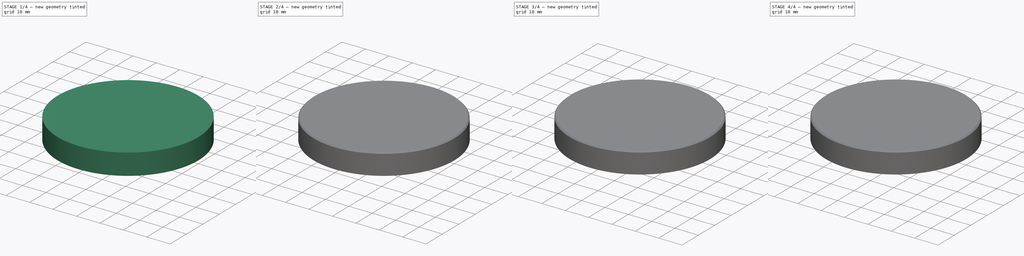
[diagram: build sequence overview — one tinted view per stage of 4, left to right]
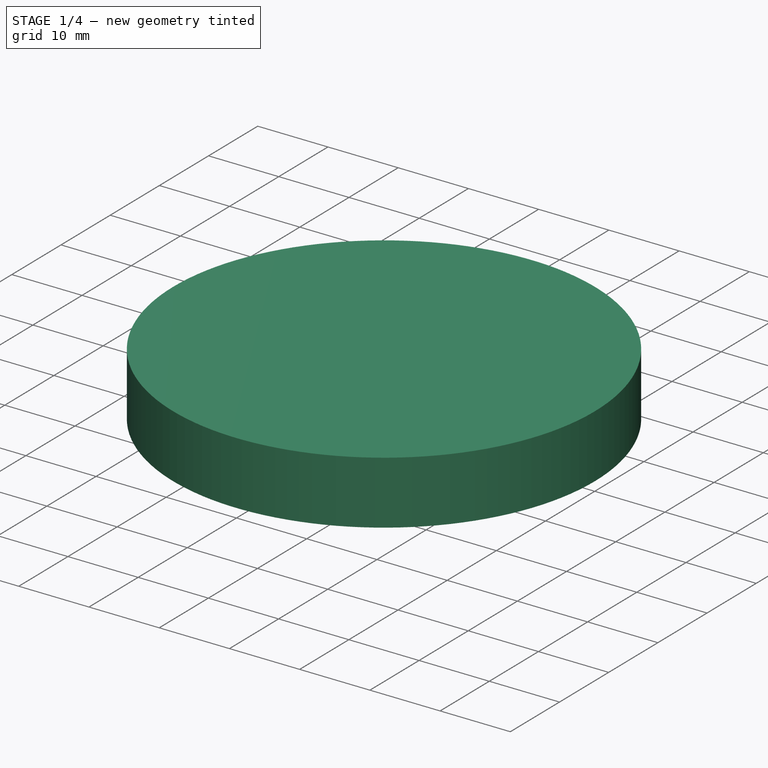
[diagram: stage 1 of 4 — iso view after this stage's code; geometry added in this stage tinted green]
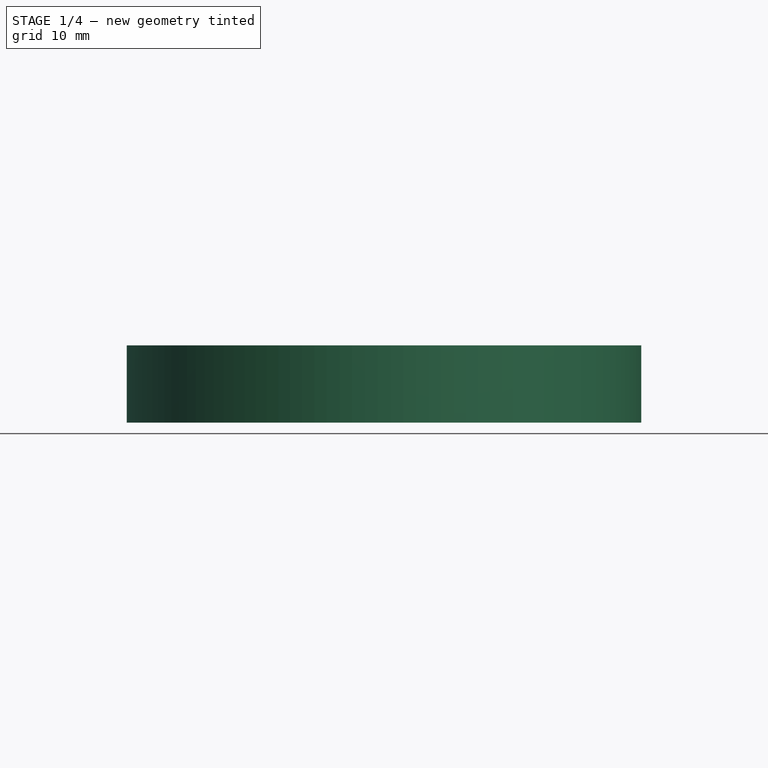
[diagram: stage 1 of 4 — front view after this stage's code; geometry added in this stage tinted green]
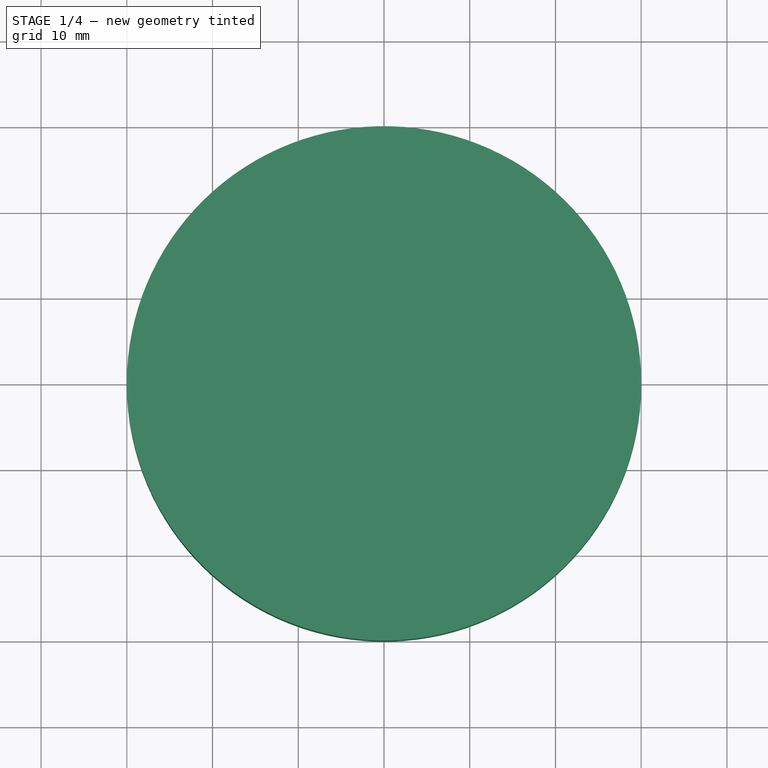
[diagram: stage 1 of 4 — top view after this stage's code; geometry added in this stage tinted green]
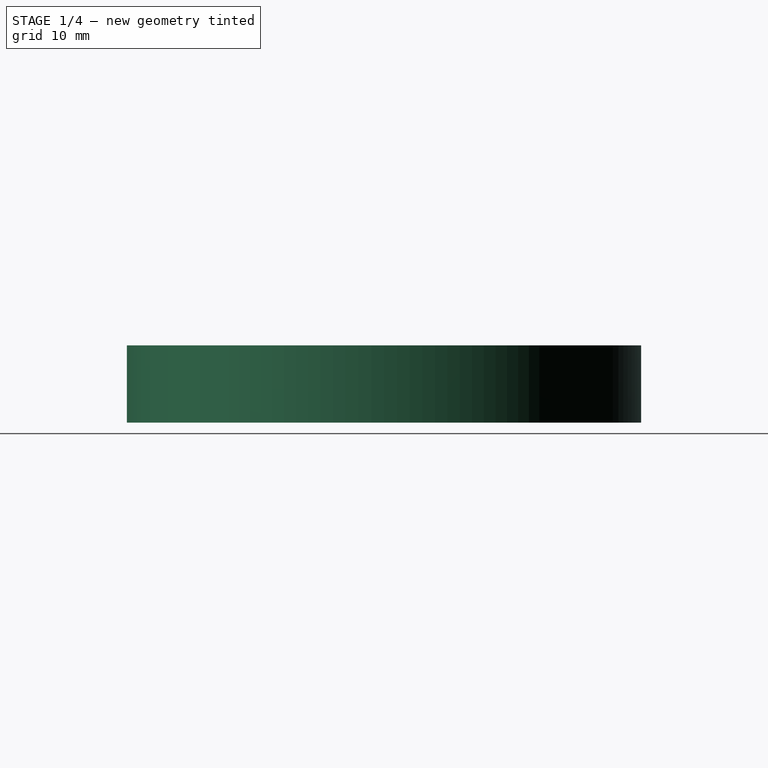
[diagram: stage 1 of 4 — right view after this stage's code; geometry added in this stage tinted green]
FCSTD DOCUMENT  (FreeCAD 0.20R29603 (Git))
Label: Weegschaal_005
License: All rights reserved
LicenseURL: http://en.wikipedia.org/wiki/All_rights_reserved
objects: Sketcher::SketchObject×9, TechDraw::DrawViewPart×6, PartDesign::Pad×4, PartDesign::Body×4, PartDesign::Pocket×4, Part::Feature×3, Image::ImagePlane×2, App::DocumentObjectGroup×2, App::FeaturePython×1, PartDesign::Thickness×1, PartDesign::Chamfer×1, TechDraw::DrawSVGTemplate×1, TechDraw::DrawPage×1, Part::Refine×1
note: 37 computed .brp shape members not serialized (recipe doc carries the construction recipe); baked Part::Feature solids carry a one-line shape summary decoded from their .brp

FEATURE [PartDesign::Body] Body001  label="Body_HX711"
  Group = -> [Sketch001,Pad001]
  Origin = -> Origin001
  Tip = -> Pad001
FEATURE [Part::Feature] Pad002  label="HX711_Big"
  shape: bbox 21 x 35 x 3 mm, 6 faces (baked)
FEATURE [Image::ImagePlane] __10_stuks_hx711_weegsensor_module_dual_channel_24_bit_precisie_a_d_module_druk_weegsensorbord  label="1-10-stuks-hx711-weegsensor-module-dual-channel-24-bit-precisie-a-d-module-druk-weegsensorbord"
  Placement = pos=(0,0,0) rot=(0,0,1;1.5708rad)
  XSize = 67.982
  YSize = 67.982
FEATURE [Image::ImagePlane] Tzt_1_5Pcs_Voor_Arduino_Dual_Channel_HX711_Wegen_Druksensor_24_Bit_Precisie_A_D_module  label="Tzt-1-5Pcs-Voor-Arduino-Dual-Channel-HX711-Wegen-Druksensor-24-Bit-Precisie-A-D-module"
  XSize = 264.55
  YSize = 264.55
FEATURE [Part::Feature] Pad003  label="HX711_Small"
  Placement = pos=(15,0,4) rot=(0,0,1;0rad)
  shape: bbox 15.6 x 24 x 3 mm, 6 faces (baked)
FEATURE [Sketcher::SketchObject] Sketch002
  FullyConstrained = true
  MapMode = 5
  Support = -> [XY_Plane002]
  expr: Constraints[1] = <<dd>>.ddTopCoverDiameter
  sketch-geometry (1):
    g0: Circle CenterX=0 CenterY=0 CenterZ=0 NormalX=0 NormalY=0 NormalZ=1 AngleXU=0 Radius=30
  constraints (2):
    c: Coincident(g0,g-1)
    c: Diameter(g0) = 60
FEATURE [PartDesign::Pad] Pad004
  Direction = (0,0,1)
  Length = 9
  Length2 = 10
  Profile = -> Sketch002
  ReferenceAxis = -> Sketch002 [N_Axis]
  Type = 0
  expr: Length = <<dd>>.ddTopCoverHeight
FEATURE [PartDesign::Thickness] Thickness
  Base = -> Pad004 [Face2]
  BaseFeature = -> Pad004
  Intersection = false
  Join = 0
  Mode = 0
  Reversed = true
  SupportTransform = false
  Value = 1
  expr: Value = <<dd>>.ddTopCoverThickness
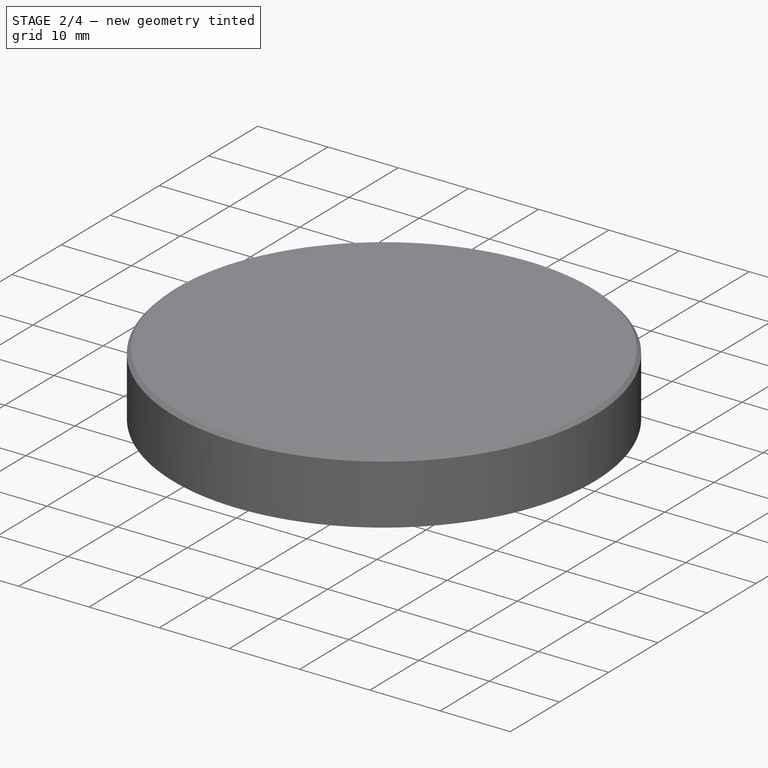
[diagram: stage 2 of 4 — iso view after this stage's code; geometry added in this stage tinted green]
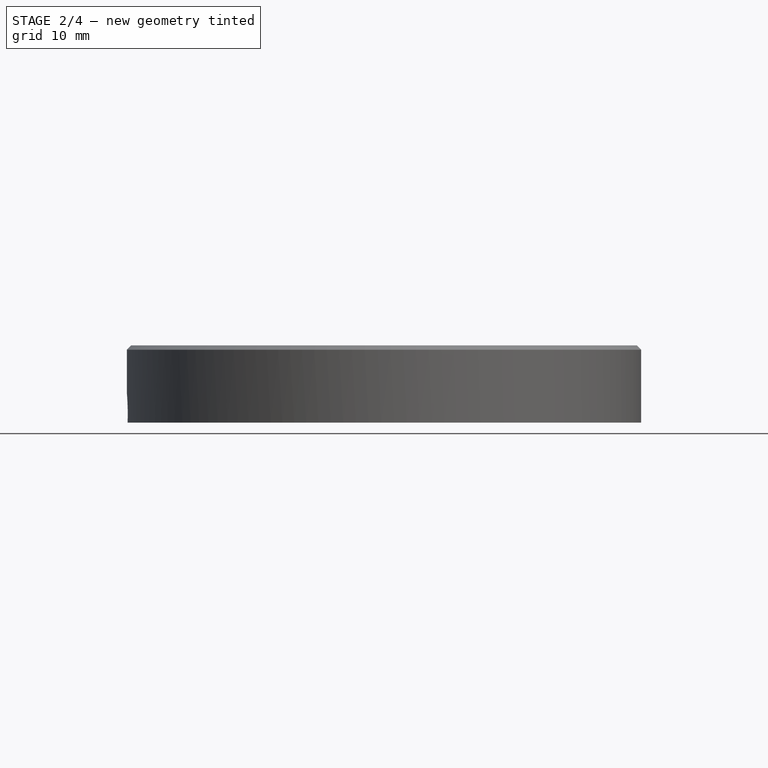
[diagram: stage 2 of 4 — front view after this stage's code; geometry added in this stage tinted green]
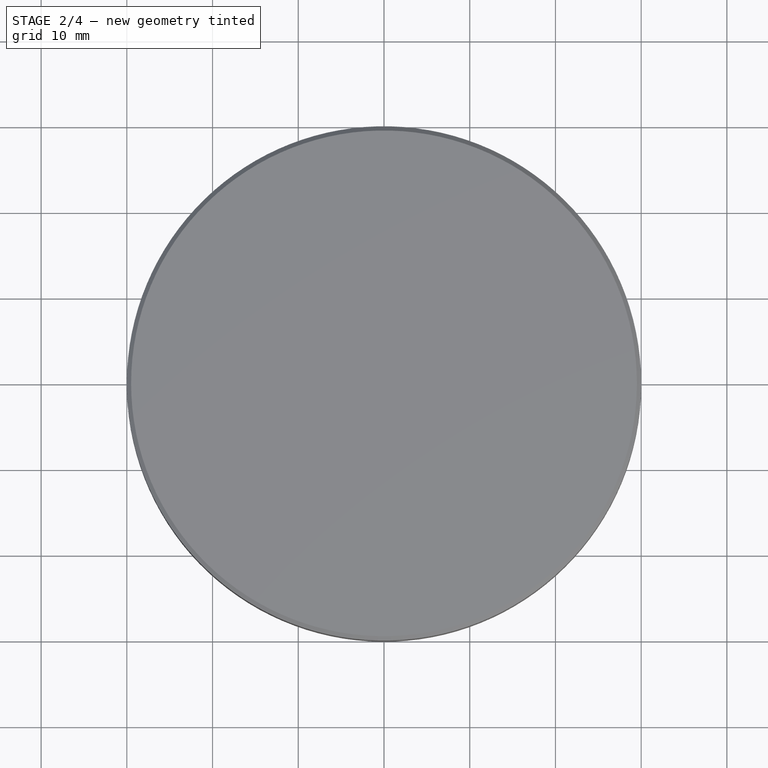
[diagram: stage 2 of 4 — top view after this stage's code; geometry added in this stage tinted green]
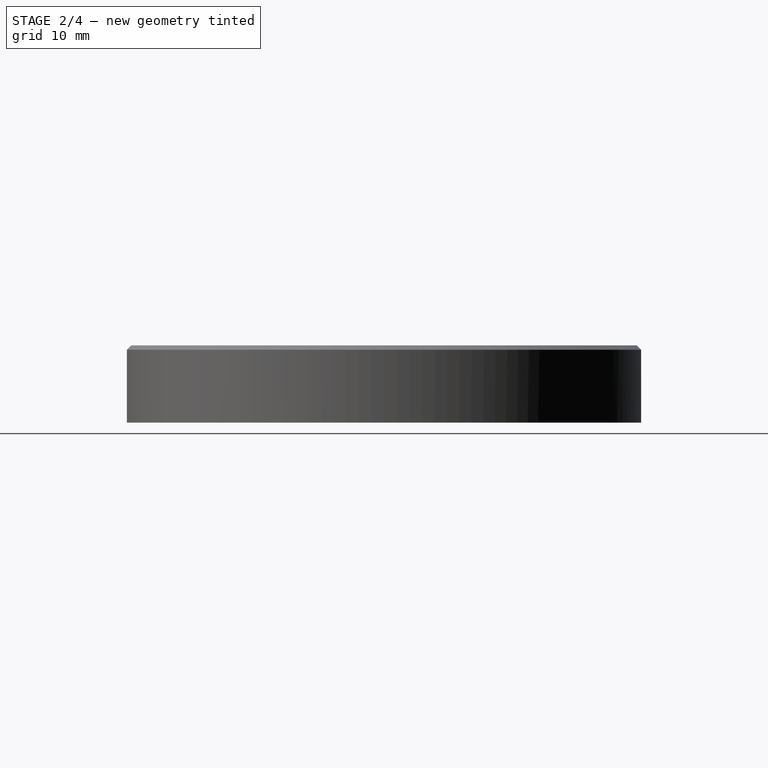
[diagram: stage 2 of 4 — right view after this stage's code; geometry added in this stage tinted green]
FEATURE [Sketcher::SketchObject] Sketch001
  FullyConstrained = true
  MapMode = 5
  Support = -> [XY_Plane001]
  sketch-geometry (4):
    g0: LineSegment StartX=-7.8 StartY=12 StartZ=0 EndX=7.8 EndY=12 EndZ=0
    g1: LineSegment StartX=7.8 StartY=12 StartZ=0 EndX=7.8 EndY=-12 EndZ=0
    g2: LineSegment StartX=7.8 StartY=-12 StartZ=0 EndX=-7.8 EndY=-12 EndZ=0
    g3: LineSegment StartX=-7.8 StartY=-12 StartZ=0 EndX=-7.8 EndY=12 EndZ=0
  constraints (10):
    c: Coincident(g0,g1)
    c: Coincident(g1,g2)
    c: Coincident(g2,g3)
    c: Coincident(g3,g0)
    c: Horizontal(g2)
    c: Vertical(g3)
    c: Symmetric(g0,g0,g-2)
    c: Symmetric(g1,g0,g-1)
    c: DistanceY(g3,g3) = 24
    c: DistanceX(g0,g0) = 15.6
FEATURE [PartDesign::Pad] Pad001
  Direction = (0,0,1)
  Length = 3
  Length2 = 10
  Profile = -> Sketch001
  ReferenceAxis = -> Sketch001 [N_Axis]
  Type = 0
FEATURE [App::DocumentObjectGroup] Group  label="SimpleObjects"
  Group = -> [Pad003,Pad002,Chamfer001,__10_stuks_hx711_weegsensor_module_dual_channel_24_bit_precisie_a_d_module_druk_weegsensorbord,Tzt_1_5Pcs_Voor_Arduino_Dual_Channel_HX711_Wegen_Druksensor_24_Bit_Precisie_A_D_module]
FEATURE [PartDesign::Chamfer] Chamfer
  Angle = 45
  Base = -> Thickness [Face2]
  BaseFeature = -> Thickness
  ChamferType = 0
  FlipDirection = false
  Size = 0.5
  Size2 = 1
  SupportTransform = false
  UseAllEdges = false
FEATURE [Sketcher::SketchObject] Sketch003  label="Sketch_SideHole"
  FullyConstrained = true
  MapMode = 5
  Placement = pos=(0,0,0) rot=(0.57735,0.57735,0.57735;2.0944rad)
  Support = -> [YZ_Plane002]
  sketch-geometry (2):
    g0: ArcOfCircle CenterX=0 CenterY=1 CenterZ=0 NormalX=0 NormalY=0 NormalZ=1 AngleXU=0 Radius=2.5 StartAngle=5.87167 EndAngle=9.83629
    g1: LineSegment StartX=-2.29129 StartY=0 StartZ=0 EndX=2.29129 EndY=-2e-16 EndZ=0
  constraints (7):
    c: PointOnObject(g0,g-2)
    c: PointOnObject(g0,g-1)
    c: Coincident(g1,g0)
    c: Coincident(g1,g0)
    c: PointOnObject(g-1,g1)
    c: Diameter(g0) = 5
    c: DistanceY(g-1,g0) = 1
FEATURE [PartDesign::Pocket] Pocket
  BaseFeature = -> Chamfer
  Direction = (-1,2e-16,-3e-16)
  Length = 5
  Length2 = 5
  Profile = -> Sketch003
  ReferenceAxis = -> Sketch003 [N_Axis]
  Type = 1
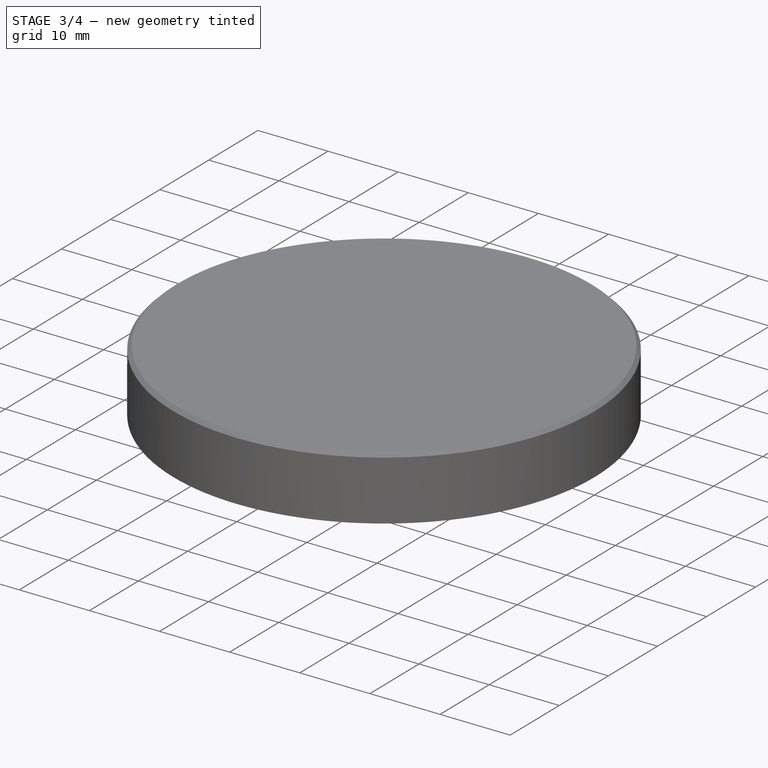
[diagram: stage 3 of 4 — iso view after this stage's code; geometry added in this stage tinted green]
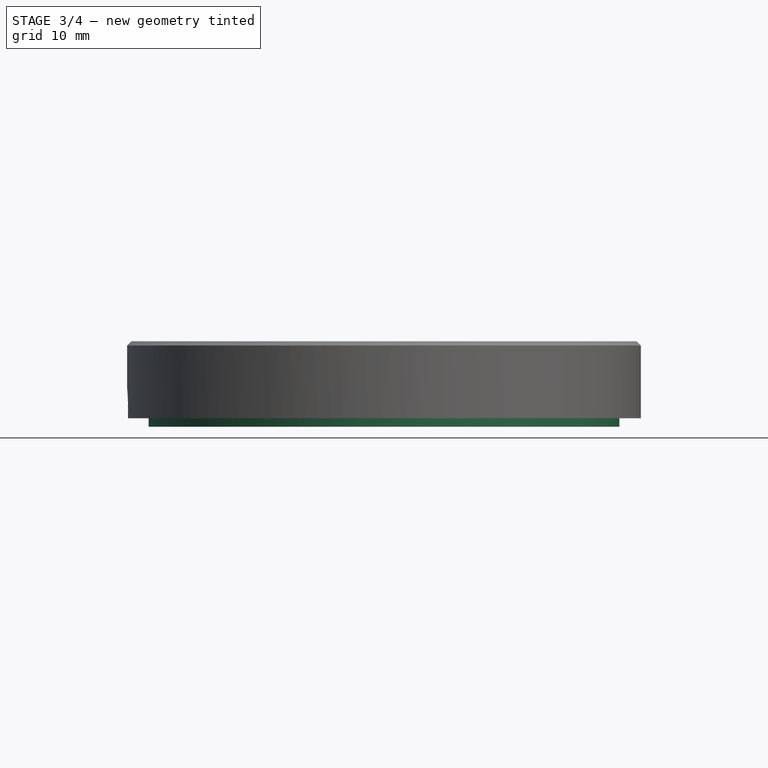
[diagram: stage 3 of 4 — front view after this stage's code; geometry added in this stage tinted green]
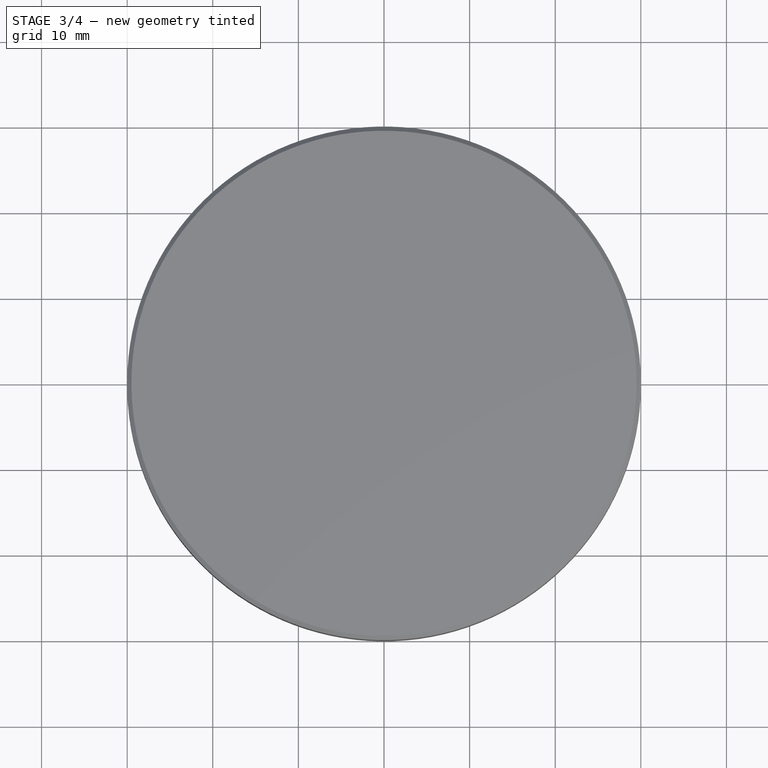
[diagram: stage 3 of 4 — top view after this stage's code; geometry added in this stage tinted green]
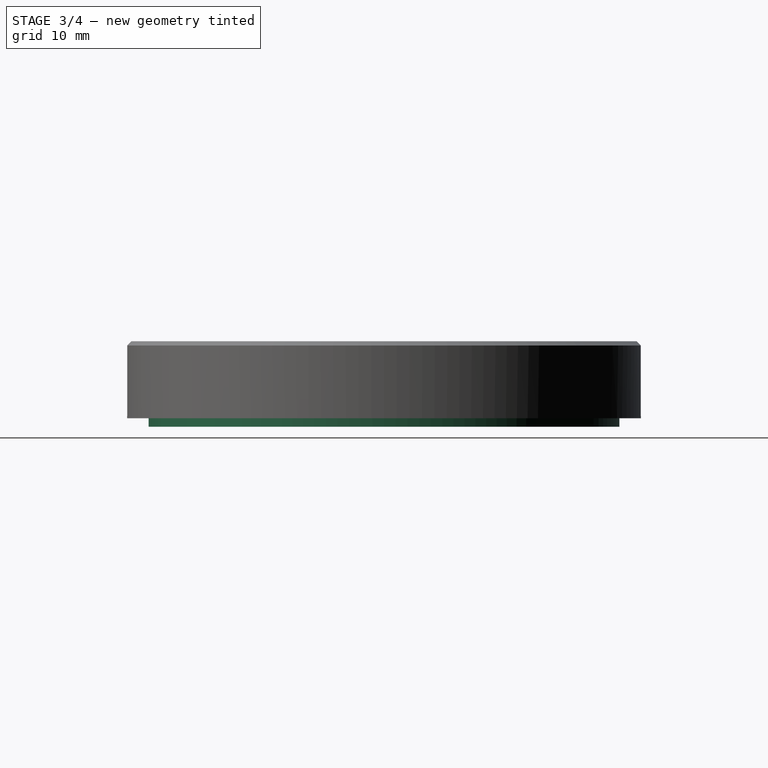
[diagram: stage 3 of 4 — right view after this stage's code; geometry added in this stage tinted green]
FEATURE [Part::Feature] Chamfer001  label="Weegcel-300G-500G-Module-Gewichtssensor-Elektronische-Weegschaal-Aluminium-Weegdruksensor001"
  Placement = pos=(0,0,4) rot=(0,0,1;0rad)
  shape: bbox 10 x 45 x 6 mm, 22 faces (baked)
FEATURE [Sketcher::SketchObject] Sketch
  FullyConstrained = true
  MapMode = 5
  Support = -> [XY_Plane]
  expr: Constraints[1] = <<dd>>.ddBasePlateDiameter
  sketch-geometry (1):
    g0: Circle CenterX=0 CenterY=0 CenterZ=0 NormalX=0 NormalY=0 NormalZ=1 AngleXU=0 Radius=27.5
  constraints (2):
    c: Coincident(g0,g-1)
    c: Diameter(g0) = 55
FEATURE [App::FeaturePython] dd  # WARN: FeaturePython — macro-defined, semantics opaque (R4)
  DynamicData = Created with DynamicData (v2.47) workbench. | This is a simple container object built | for holding custom properties.
  ddBasePlateDiameter = 55
  ddBasePlateThickness = 1
  ddHx711Height = 24.18
  ddHx711HolderHeight = 7
  ddHx711Margin = 1
  ddHx711Width = 15.74
  ddTopCoverDiameter = 60
  ddTopCoverHeight = 9
  ddTopCoverThickness = 1
FEATURE [PartDesign::Pad] Pad
  Direction = (0,0,1)
  Length = 1
  Length2 = 10
  Profile = -> Sketch
  ReferenceAxis = -> Sketch [N_Axis]
  Reversed = true
  Type = 0
  expr: Length = <<dd>>.ddBasePlateThickness
FEATURE [PartDesign::Body] Body002  label="Body_TopCover"
  Group = -> [Sketch002,Pad004,Thickness,Chamfer,Sketch003,Pocket]
  Origin = -> Origin002
  Tip = -> Pocket
FEATURE [Sketcher::SketchObject] Sketch004  label="Sketch_bolt_holes"
  FullyConstrained = true
  MapMode = 5
  Support = -> [XY_Plane]
  expr: Constraints[7] = <<dd>>.ddBasePlateDiameter
  sketch-geometry (9):
    g0: Circle CenterX=0 CenterY=18.5 CenterZ=0 NormalX=0 NormalY=0 NormalZ=1 AngleXU=0 Radius=1.5
    g1: Circle CenterX=0 CenterY=11 CenterZ=0 NormalX=0 NormalY=0 NormalZ=1 AngleXU=0 Radius=1.5
    g2: Circle CenterX=0 CenterY=0 CenterZ=0 NormalX=0 NormalY=0 NormalZ=1 AngleXU=0 Radius=27.5
    g3: LineSegment StartX=0 StartY=0 StartZ=0 EndX=27.5 EndY=0 EndZ=0
    g4: LineSegment StartX=0 StartY=0 StartZ=0 EndX=0 EndY=27.5 EndZ=0
    g5: LineSegment StartX=0 StartY=0 StartZ=0 EndX=-27.5 EndY=0 EndZ=0
    g6: LineSegment StartX=0 StartY=0 StartZ=0 EndX=0 EndY=-27.5 EndZ=0
    g7: LineSegment StartX=-1.5 StartY=18.5 StartZ=0 EndX=1.5 EndY=18.5 EndZ=0
    g8: LineSegment StartX=-1.5 StartY=11 StartZ=0 EndX=1.5 EndY=11 EndZ=0
  constraints (28):
    c: PointOnObject(g0,g-2)
    c: PointOnObject(g1,g-2)
    c: DistanceY(g1,g0) = 7.5
    c: DistanceY(g-1,g1) = 11
    c: Equal(g0,g1)
    c: Diameter(g0) = 3
    c: Coincident(g2,g-1)
    c: Diameter(g2) = 55
    c: Coincident(g3,g2)
    c: PointOnObject(g3,g2)
    c: Coincident(g4,g2)
    c: PointOnObject(g4,g2)
    c: Coincident(g5,g2)
    c: PointOnObject(g5,g2)
    c: Coincident(g6,g2)
    c: PointOnObject(g6,g2)
    c: Vertical(g6)
    c: Horizontal(g3)
    c: Horizontal(g5)
    c: Vertical(g4)
    c: PointOnObject(g7,g0)
    c: PointOnObject(g7,g0)
    c: PointOnObject(g0,g7)
    c: Horizontal(g7)
    c: PointOnObject(g8,g1)
    c: PointOnObject(g8,g1)
    c: Horizontal(g8)
    c: PointOnObject(g1,g8)
FEATURE [PartDesign::Body] Body  label="Body_BottomPlate"
  Group = -> [Sketch,Pad,Sketch004]
  Origin = -> Origin
  Tip = -> Pad
FEATURE [TechDraw::DrawSVGTemplate] Template
  Height = 297
  Orientation = 0
  Width = 210
FEATURE [TechDraw::DrawViewPart] View
  CoarseView = false
  Direction = (0,0,1)
  Focus = 100
  HardHidden = false
  IsoCount = 0
  IsoHidden = false
  IsoVisible = false
  LockPosition = false
  Perspective = false
  Rotation = 0
  ScaleType = 0
  SeamHidden = false
  SeamVisible = true
  SmoothHidden = false
  SmoothVisible = true
  Source = -> [Sketch004]
  X = 144.184
  XDirection = (1,0,0)
  Y = 150.204
FEATURE [TechDraw::DrawViewPart] View001
  CoarseView = false
  Direction = (0,0,1)
  Focus = 100
  HardHidden = false
  IsoCount = 0
  IsoHidden = false
  IsoVisible = false
  LockPosition = false
  Perspective = false
  Rotation = 0
  ScaleType = 0
  SeamHidden = false
  SeamVisible = true
  SmoothHidden = false
  SmoothVisible = true
  Source = -> [Sketch004]
  X = 67.5201
  XDirection = (1,0,0)
  Y = 70.7008
FEATURE [TechDraw::DrawViewPart] View002
  CoarseView = false
  Direction = (0,0,1)
  Focus = 100
  HardHidden = false
  IsoCount = 0
  IsoHidden = false
  IsoVisible = false
  LockPosition = false
  Perspective = false
  Rotation = 0
  ScaleType = 0
  SeamHidden = false
  SeamVisible = true
  SmoothHidden = false
  SmoothVisible = true
  Source = -> [Sketch004]
  X = 147.591
  XDirection = (1,0,0)
  Y = 67.2935
FEATURE [TechDraw::DrawViewPart] View003
  CoarseView = false
  Direction = (0,0,1)
  Focus = 100
  HardHidden = false
  IsoCount = 0
  IsoHidden = false
  IsoVisible = false
  LockPosition = false
  Perspective = false
  Rotation = 0
  ScaleType = 0
  SeamHidden = false
  SeamVisible = true
  SmoothHidden = false
  SmoothVisible = true
  Source = -> [Sketch004]
  X = 146.455
  XDirection = (1,0,0)
  Y = 235.385
FEATURE [TechDraw::DrawViewPart] View004
  CoarseView = false
  Direction = (0,0,1)
  Focus = 100
  HardHidden = false
  IsoCount = 0
  IsoHidden = false
  IsoVisible = false
  LockPosition = false
  Perspective = false
  Rotation = 0
  ScaleType = 0
  SeamHidden = false
  SeamVisible = true
  SmoothHidden = false
  SmoothVisible = true
  Source = -> [Sketch004]
  X = 60.1377
  XDirection = (1,0,0)
  Y = 151.339
FEATURE [TechDraw::DrawViewPart] View005
  CoarseView = false
  Direction = (0,0,1)
  Focus = 100
  HardHidden = false
  IsoCount = 0
  IsoHidden = false
  IsoVisible = false
  LockPosition = false
  Perspective = false
  Rotation = 0
  ScaleType = 0
  SeamHidden = false
  SeamVisible = true
  SmoothHidden = false
  SmoothVisible = true
  Source = -> [Sketch004]
  X = 68.088
  XDirection = (1,0,0)
  Y = 235.385
FEATURE [TechDraw::DrawPage] Page
  KeepUpdated = true
  NextBalloonIndex = 1
  ProjectionType = 0
  Template = -> Template
  Views = -> [View,View001,View002,View003,View004,View005]
FEATURE [Sketcher::SketchObject] Sketch008  label="Sketch_HX711_Holder_New"
  FullyConstrained = false
  MapMode = 5
  Support = -> [XY_Plane004]
  expr: Constraints[1] = <<dd>>.ddBasePlateDiameter
  sketch-geometry (4):
    g0: ArcOfCircle CenterX=0 CenterY=1.1e-15 CenterZ=0 NormalX=0 NormalY=0 NormalZ=1 AngleXU=0 Radius=27.5 StartAngle=4.94747 EndAngle=7.6189
    g1: LineSegment StartX=6.40542 StartY=26.7436 StartZ=0 EndX=6 EndY=26.7436 EndZ=0
    g2: LineSegment StartX=6 StartY=26.7436 StartZ=0 EndX=6 EndY=-26.7436 EndZ=0
    g3: LineSegment StartX=6 StartY=-26.7436 StartZ=0 EndX=6.40542 EndY=-26.7436 EndZ=0
  constraints (11):
    c: Symmetric(g0,g0,g-1)
    c: Diameter(g0) = 55
    c: Horizontal(g1)
    c: Coincident(g1,g2)
    c: Vertical(g2)
    c: Coincident(g2,g3)
    c: Horizontal(g3)
    c: Coincident(g3,g0)
    c: Coincident(g1,g0)
    c: DistanceX(g0,g1) = 6
    c: PointOnObject(g0,g-2)
FEATURE [PartDesign::Pad] Pad006
  Direction = (0,0,1)
  Length = 7
  Length2 = 10
  Profile = -> Sketch008
  ReferenceAxis = -> Sketch008 [N_Axis]
  Type = 0
  expr: Length = <<dd>>.ddHx711HolderHeight
FEATURE [Sketcher::SketchObject] Sketch009  label="Sketch_board_cut"
  AttachmentOffset = pos=(0,0,1) rot=(0,0,1;0rad)
  ExternalGeometry = -> [Sketch008]
  FullyConstrained = false
  MapMode = 5
  Placement = pos=(0,0,1) rot=(0,0,1;0rad)
  Support = -> [XY_Plane004]
  expr: Constraints[17] = <<dd>>.ddHx711Width + <<dd>>.ddHx711Margin
  expr: Constraints[18] = <<dd>>.ddHx711Height + <<dd>>.ddHx711Margin
  sketch-geometry (12):
    g0: LineSegment StartX=9.06989 StartY=20.9906 StartZ=0 EndX=9.06989 EndY=12.3813 EndZ=0
    g1: LineSegment StartX=9.06989 StartY=-12.0978 StartZ=0 EndX=9.06989 EndY=-18.1314 EndZ=0
    g2: ArcOfCircle CenterX=0.55773 CenterY=2.92258 CenterZ=0 NormalX=0 NormalY=0 NormalZ=1 AngleXU=0 Radius=22.8574 StartAngle=0.436692 EndAngle=0.911567
    g3: ArcOfCircle CenterX=1.27827 CenterY=-1.50902 CenterZ=0 NormalX=0 NormalY=0 NormalZ=1 AngleXU=0 Radius=22.8574 StartAngle=5.18493 EndAngle=5.77707
    g4: LineSegment StartX=9.06989 StartY=20.9906 StartZ=0 EndX=14.5581 EndY=20.9906 EndZ=0
    g5: LineSegment StartX=9.06989 StartY=-18.1314 StartZ=0 EndX=11.6818 EndY=-21.8616 EndZ=0
    g6: LineSegment StartX=6.8 StartY=12.3813 StartZ=0 EndX=9.06989 EndY=12.3813 EndZ=0
    g7: LineSegment StartX=23.54 StartY=12.59 StartZ=0 EndX=23.54 EndY=-12.59 EndZ=0
    g8: LineSegment StartX=23.54 StartY=-12.59 StartZ=0 EndX=21.2701 EndY=-12.59 EndZ=0
    g9: LineSegment StartX=6.8 StartY=-12.0978 StartZ=0 EndX=6.8 EndY=12.3813 EndZ=0
    g10: LineSegment StartX=21.2701 StartY=12.59 StartZ=0 EndX=23.54 EndY=12.59 EndZ=0
    g11: LineSegment StartX=9.06989 StartY=-12.0978 StartZ=0 EndX=6.8 EndY=-12.0978 EndZ=0
  constraints (29):
    c: Vertical(g0)
    c: Vertical(g1)
    c: Equal(g2,g3)
    c: Horizontal(g4)
    c: Coincident(g2,g4)
    c: Coincident(g0,g4)
    c: Coincident(g3,g5)
    c: Coincident(g1,g5)
    c: Angle(g5,g1) = 2.53073
    c: Coincident(g10,g7)
    c: Coincident(g7,g8)
    c: Coincident(g11,g9)
    c: Coincident(g9,g6)
    c: Horizontal(g6)
    c: Horizontal(g8)
    c: Vertical(g9)
    c: Symmetric(g10,g7,g-1)
    c: DistanceX(g6,g10) = 16.74
    c: DistanceY(g7,g7) = 25.18
    c: Coincident(g6,g0)
    c: Coincident(g10,g2)
    c: Coincident(g8,g3)
    c: Coincident(g11,g1)
    c: Horizontal(g11)
    c: Horizontal(g10)
    c: Equal(g11,g8)
    c: Equal(g8,g10)
    c: Equal(g10,g6)
    c: DistanceX(g-3,g9) = 0.8
FEATURE [PartDesign::Pocket] Pocket003
  BaseFeature = -> Pad006
  Direction = (0,0,-1)
  Length = 5
  Length2 = 5
  Profile = -> Sketch009
  ReferenceAxis = -> Sketch009 [N_Axis]
  Reversed = true
  Type = 1
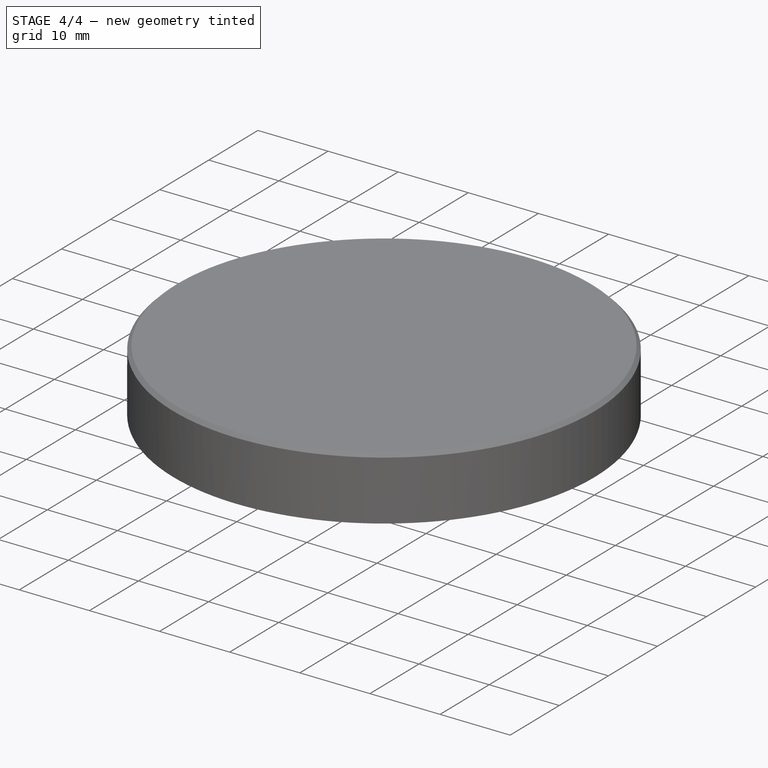
[diagram: stage 4 of 4 — iso view after this stage's code; geometry added in this stage tinted green]
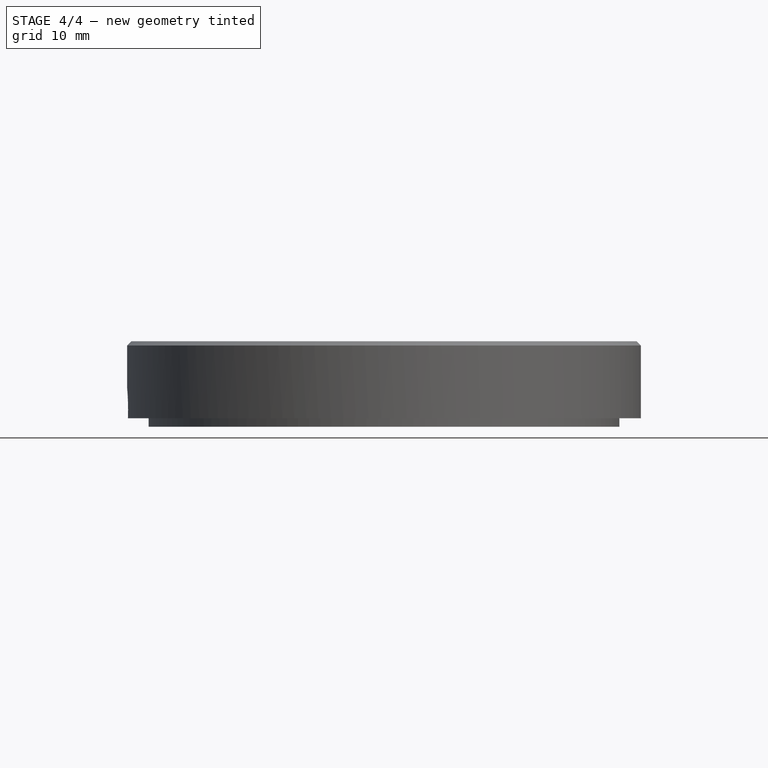
[diagram: stage 4 of 4 — front view after this stage's code; geometry added in this stage tinted green]
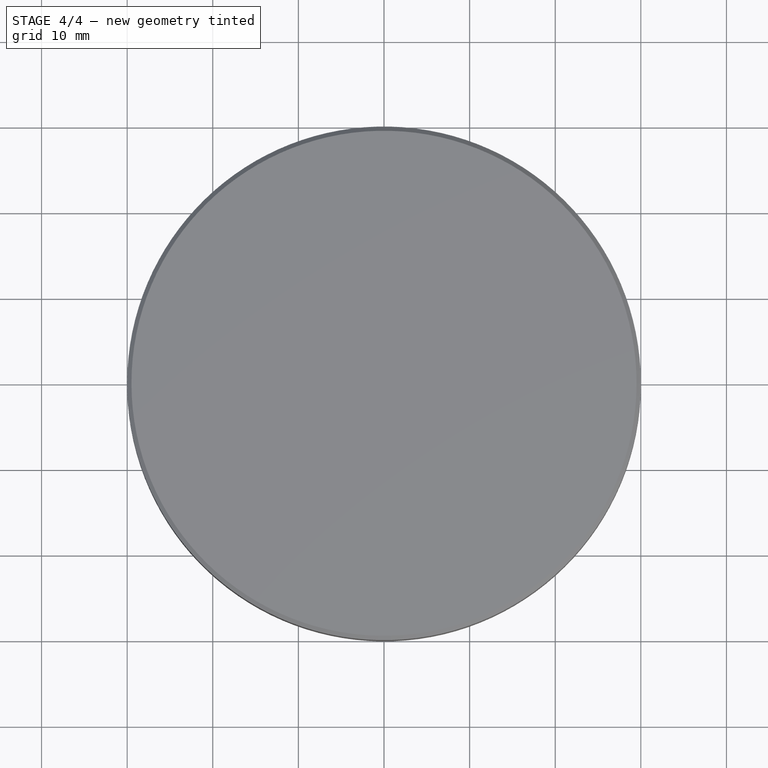
[diagram: stage 4 of 4 — top view after this stage's code; geometry added in this stage tinted green]
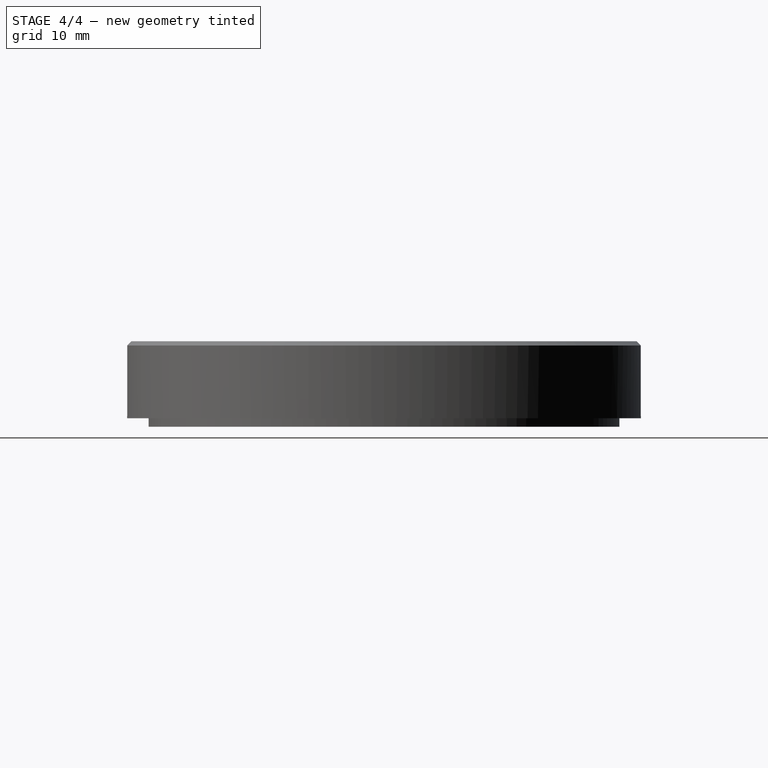
[diagram: stage 4 of 4 — right view after this stage's code; geometry added in this stage tinted green]
FEATURE [Sketcher::SketchObject] Sketch010
  AttachmentOffset = pos=(25,0,25) rot=(0,1,0;0.523599rad)
  FullyConstrained = false
  MapMode = 5
  Placement = pos=(25,25,0) rot=(0.377964,0.654654,0.654654;2.41886rad)
  Support = -> [YZ_Plane004]
  sketch-geometry (7):
    g0: ArcOfCircle CenterX=-1e-16 CenterY=3.9 CenterZ=0 NormalX=0 NormalY=0 NormalZ=1 AngleXU=0 Radius=1.5 StartAngle=2.35619 EndAngle=7.06858
    g1: GeomPoint X=0 Y=2.4 Z=0
    g2: LineSegment StartX=-1.06066 StartY=4.96066 StartZ=0 EndX=-0.62132 EndY=5.4 EndZ=0
    g3: LineSegment StartX=-0.62132 StartY=5.4 StartZ=0 EndX=0.62132 EndY=5.4 EndZ=0
    g4: LineSegment StartX=0.62132 StartY=5.4 StartZ=0 EndX=1.06066 EndY=4.96066 EndZ=0
    g5: ArcOfCircle CenterX=-1e-16 CenterY=3.9 CenterZ=0 NormalX=0 NormalY=0 NormalZ=1 AngleXU=0 Radius=1.5 StartAngle=0.0691501 EndAngle=2.35619
    g6: GeomPoint X=0 Y=5.4 Z=0
  constraints (16):
    c: Diameter(g0) = 3
    c: PointOnObject(g1,g0)
    c: PointOnObject(g1,g-2)
    c: DistanceY(g-1,g1) = 2.4
    c: Symmetric(g0,g0,g-2)
    c: Coincident(g2,g3)
    c: Horizontal(g3)
    c: Coincident(g3,g4)
    c: Tangent(g4,g0) = 1.5708
    c: Tangent(g2,g0) = 1.5708
    c: Coincident(g5,g0)
    c: Coincident(g5,g0)
    c: Angle(g2,g-2) = 0.785398
    c: PointOnObject(g6,g-2)
    c: PointOnObject(g6,g5)
    c: PointOnObject(g6,g3)
FEATURE [PartDesign::Pocket] Pocket004
  BaseFeature = -> Pocket003
  Direction = (-0.866025,-0.5,-1e-16)
  Length = 12
  Length2 = 5
  Profile = -> Sketch010
  ReferenceAxis = -> Sketch010 [N_Axis]
  Type = 0
FEATURE [Sketcher::SketchObject] Sketch011
  AttachmentOffset = pos=(0,0,7) rot=(0,0,1;0rad)
  FullyConstrained = false
  MapMode = 5
  Placement = pos=(0,0,7) rot=(0,0,1;0rad)
  Support = -> [XY_Plane004]
  sketch-geometry (6):
    g0: LineSegment StartX=9.54612 StartY=-17.4842 StartZ=0 EndX=3.82131 EndY=-19.5955 EndZ=0
    g1: LineSegment StartX=3.82131 StartY=-19.5955 StartZ=0 EndX=3.82131 EndY=-24.9627 EndZ=0
    g2: LineSegment StartX=3.82131 StartY=-24.9627 StartZ=0 EndX=5.72724 EndY=-24.8123 EndZ=0
    g3: LineSegment StartX=5.72724 StartY=-24.8123 StartZ=0 EndX=8.86856 EndY=-24.0252 EndZ=0
    g4: LineSegment StartX=8.86856 StartY=-24.0252 StartZ=0 EndX=11.9144 EndY=-21.802 EndZ=0
    g5: LineSegment StartX=11.9144 StartY=-21.802 StartZ=0 EndX=9.54612 EndY=-17.4842 EndZ=0
  constraints (7):
    c: Coincident(g0,g1)
    c: Vertical(g1)
    c: Coincident(g1,g2)
    c: Coincident(g2,g3)
    c: Coincident(g3,g4)
    c: Coincident(g4,g5)
    c: Coincident(g5,g0)
FEATURE [PartDesign::Pocket] Pocket005
  BaseFeature = -> Pocket004
  Direction = (0,0,-1)
  Length = 2
  Length2 = 5
  Profile = -> Sketch011
  ReferenceAxis = -> Sketch011 [N_Axis]
  Type = 0
FEATURE [PartDesign::Body] Body004  label="Body_HX711_Holder"
  Group = -> [Sketch008,Pad006,Sketch009,Pocket003,Sketch010,Pocket004,Sketch011,Pocket005]
  Origin = -> Origin004
  Tip = -> Pocket005
FEATURE [Part::Refine] Pocket006
  Source = -> Pocket005
FEATURE [App::DocumentObjectGroup] Group001  label="Misc"
  Group = -> [Body,Body001,Group,Body002]
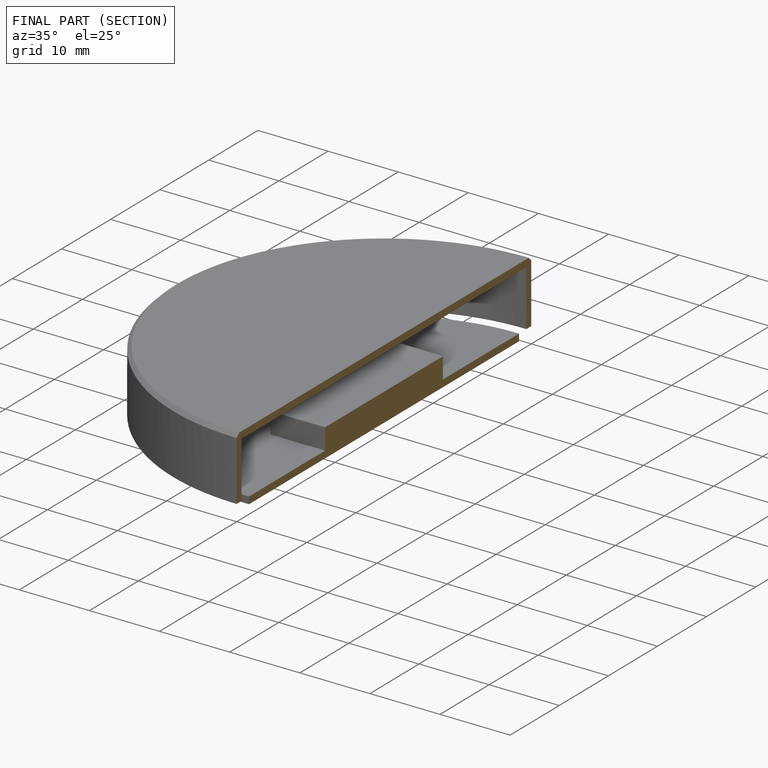
[diagram: finished part — half-section view (interior)]
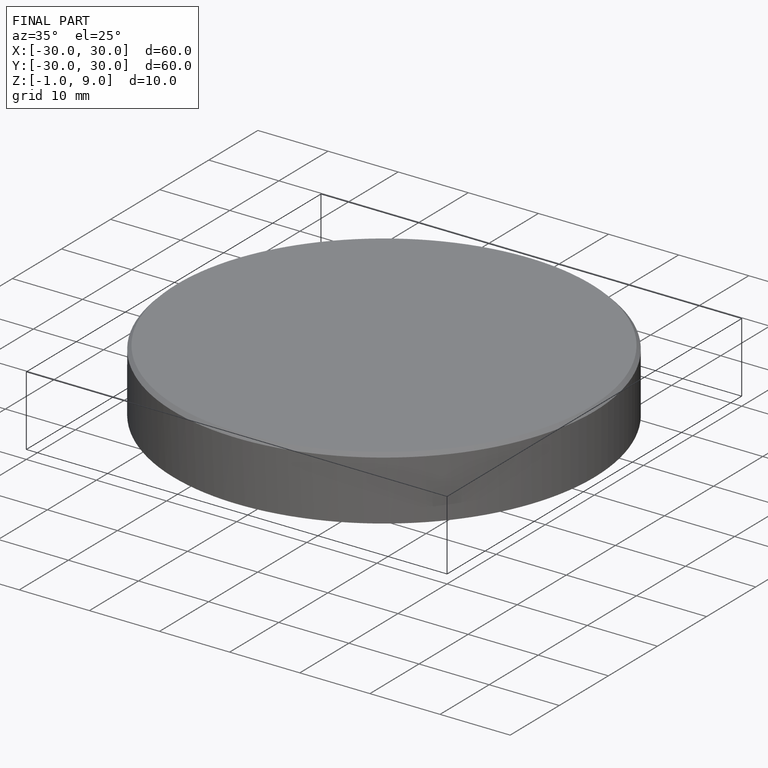
[diagram: finished part — iso view with bounding-box wireframe]
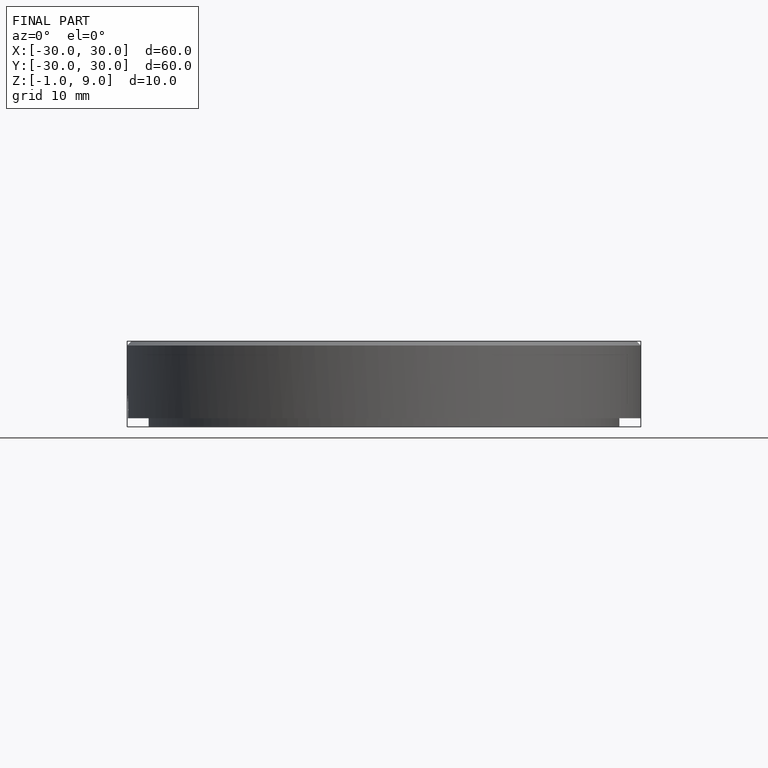
[diagram: finished part — front view with bounding-box wireframe]
